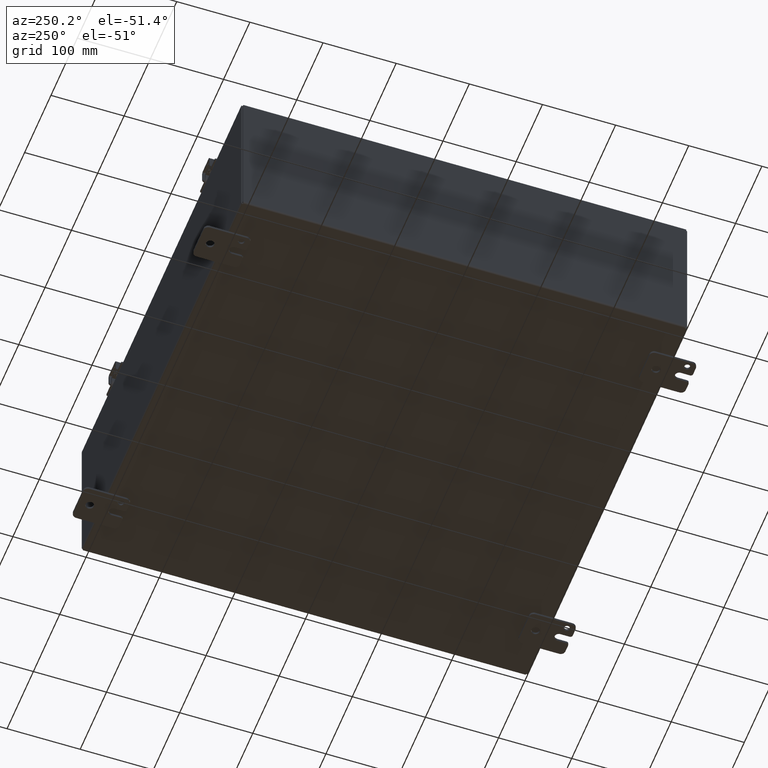
[diagram: clean part render]
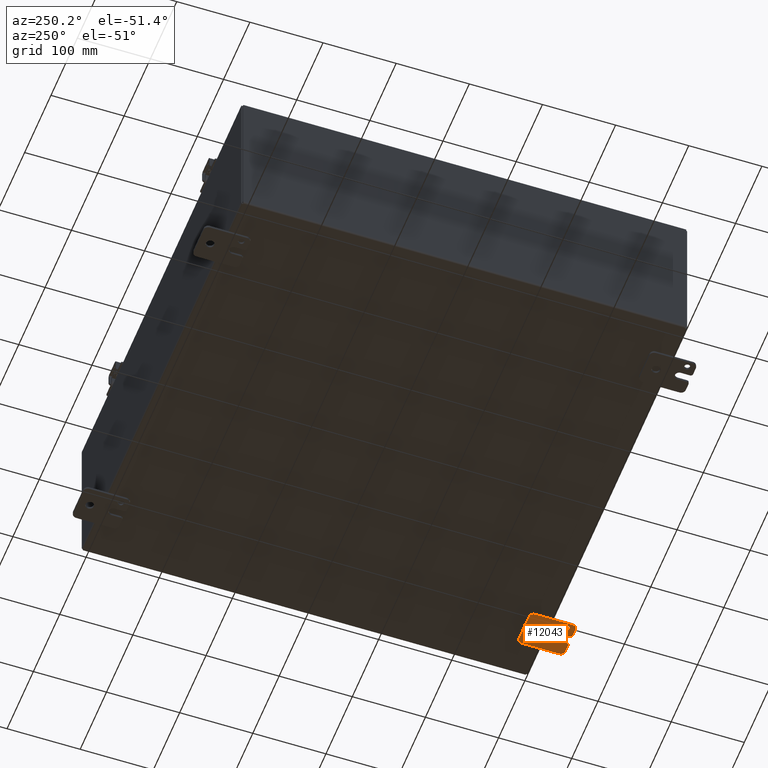
[diagram: same view with one face highlighted and labeled with its STEP entity id]
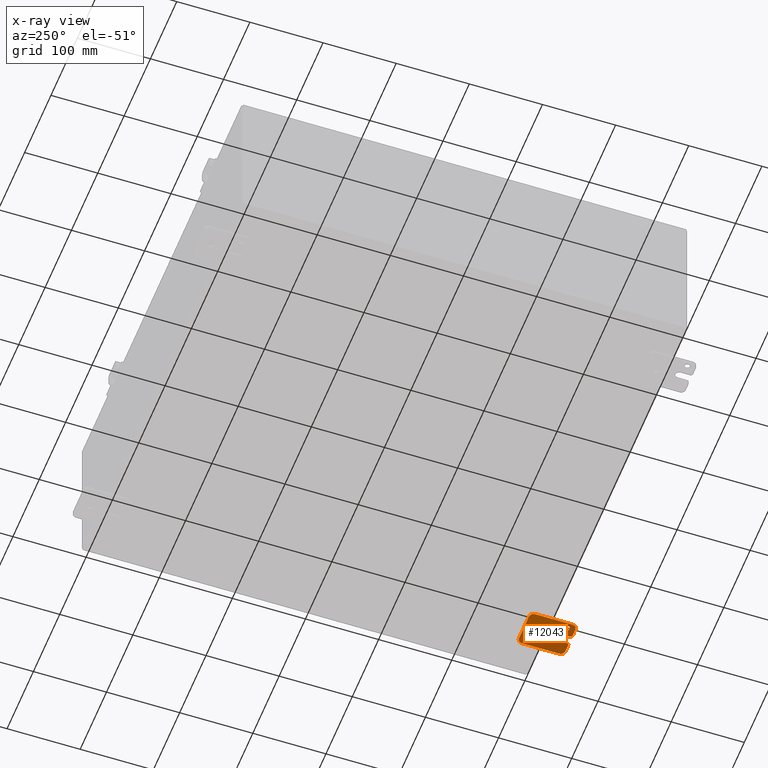
[diagram: x-ray of the same camera — body ghosted, the highlighted face saturated]
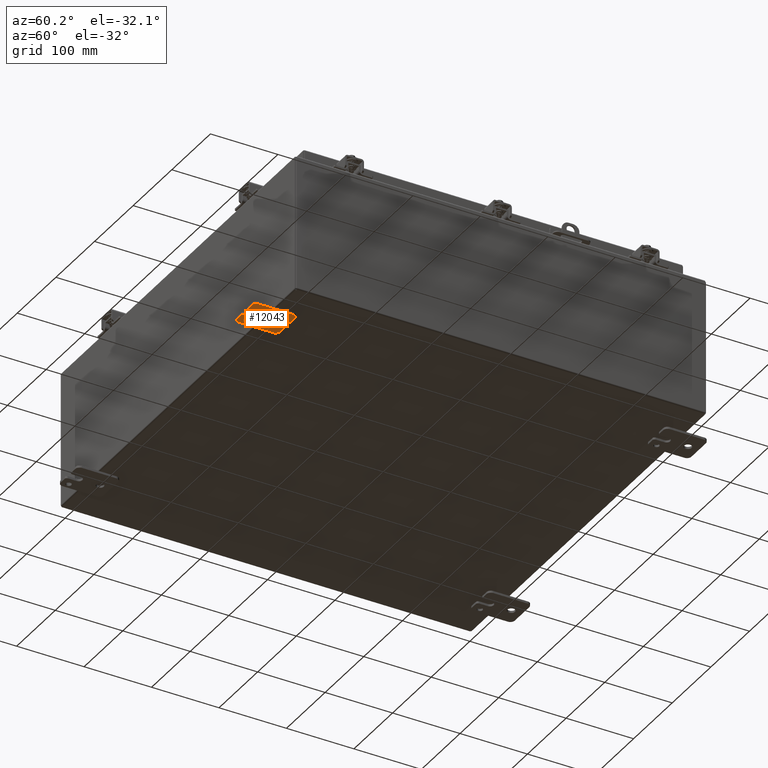
[diagram: same view with one face highlighted and labeled with its STEP entity id]
A machine part, auxiliary view. The second image highlights one B-rep face of the part: STEP entity #12043.
The next image is the same camera in x-ray: the body ghosted, the highlighted face saturated — about 0% of this face is hidden behind the body in this view.
A second angle (auxiliary view) of the same face is appended — the face is thin or edge-on in the first view.
In plain terms, the highlighted planar face has unit normal (0, 0, 1).
Its self-contained STEP definition (entity closure, byte-faithful):
#1125=PLANE('',#12765);
#1496=LINE('',#16998,#2613);
#1506=LINE('',#17034,#2623);
#1509=LINE('',#17042,#2626);
#1512=LINE('',#17050,#2629);
#1515=LINE('',#17058,#2632);
#1517=LINE('',#17064,#2634);
#1518=LINE('',#17070,#2635);
#2613=VECTOR('',#13793,0.5);
#2623=VECTOR('',#13825,0.406);
#2626=VECTOR('',#13834,0.406);
#2629=VECTOR('',#13843,2.);
#2632=VECTOR('',#13852,1.5);
#2634=VECTOR('',#13860,2.);
#2635=VECTOR('',#13867,0.5);
#3730=FACE_BOUND('',#4482,.T.);
#3731=FACE_BOUND('',#4483,.T.);
#3789=FACE_OUTER_BOUND('',#4481,.T.);
#4481=EDGE_LOOP('',(#8507,#8508,#8509,#8510,#8511,#8512,#8513,#8514,#8515,
#8516,#8517,#8518,#8519,#8520));
#4482=EDGE_LOOP('',(#8521));
#4483=EDGE_LOOP('',(#8522));
#5194=CIRCLE('',#12731,0.1565);
#5196=CIRCLE('',#12734,0.125);
#5205=CIRCLE('',#12746,0.125);
#5206=CIRCLE('',#12749,0.25);
#5207=CIRCLE('',#12752,0.25);
#5208=CIRCLE('',#12755,0.25);
#5209=CIRCLE('',#12758,0.25);
#5210=CIRCLE('',#12761,0.219);
#5211=CIRCLE('',#12764,0.219);
#5573=VERTEX_POINT('',#16980);
#5575=VERTEX_POINT('',#16985);
#5576=VERTEX_POINT('',#16986);
#5580=VERTEX_POINT('',#16996);
#5593=VERTEX_POINT('',#17026);
#5594=VERTEX_POINT('',#17028);
#5595=VERTEX_POINT('',#17032);
#5596=VERTEX_POINT('',#17036);
#5597=VERTEX_POINT('',#17038);
#5598=VERTEX_POINT('',#17044);
#5599=VERTEX_POINT('',#17048);
#5600=VERTEX_POINT('',#17052);
#5601=VERTEX_POINT('',#17056);
#5602=VERTEX_POINT('',#17060);
#5603=VERTEX_POINT('',#17066);
#5604=VERTEX_POINT('',#17069);
#6695=EDGE_CURVE('',#5573,#5573,#5194,.T.);
#6697=EDGE_CURVE('',#5575,#5576,#5196,.T.);
#6703=EDGE_CURVE('',#5575,#5580,#1496,.T.);
#6718=EDGE_CURVE('',#5593,#5594,#5205,.T.);
#6721=EDGE_CURVE('',#5595,#5593,#1506,.T.);
#6723=EDGE_CURVE('',#5596,#5597,#5206,.T.);
#6725=EDGE_CURVE('',#5576,#5596,#1509,.T.);
#6727=EDGE_CURVE('',#5598,#5595,#5207,.T.);
#6729=EDGE_CURVE('',#5599,#5598,#1512,.T.);
#6731=EDGE_CURVE('',#5600,#5599,#5208,.T.);
#6733=EDGE_CURVE('',#5601,#5600,#1515,.T.);
#6735=EDGE_CURVE('',#5602,#5601,#5209,.T.);
#6736=EDGE_CURVE('',#5597,#5602,#1517,.T.);
#6737=EDGE_CURVE('',#5603,#5603,#5210,.T.);
#6738=EDGE_CURVE('',#5604,#5594,#1518,.T.);
#6740=EDGE_CURVE('',#5580,#5604,#5211,.T.);
#8507=ORIENTED_EDGE('',*,*,#6697,.F.);
#8508=ORIENTED_EDGE('',*,*,#6703,.T.);
#8509=ORIENTED_EDGE('',*,*,#6740,.T.);
#8510=ORIENTED_EDGE('',*,*,#6738,.T.);
#8511=ORIENTED_EDGE('',*,*,#6718,.F.);
#8512=ORIENTED_EDGE('',*,*,#6721,.F.);
#8513=ORIENTED_EDGE('',*,*,#6727,.F.);
#8514=ORIENTED_EDGE('',*,*,#6729,.F.);
#8515=ORIENTED_EDGE('',*,*,#6731,.F.);
#8516=ORIENTED_EDGE('',*,*,#6733,.F.);
#8517=ORIENTED_EDGE('',*,*,#6735,.F.);
#8518=ORIENTED_EDGE('',*,*,#6736,.F.);
#8519=ORIENTED_EDGE('',*,*,#6723,.F.);
#8520=ORIENTED_EDGE('',*,*,#6725,.F.);
#8521=ORIENTED_EDGE('',*,*,#6695,.T.);
#8522=ORIENTED_EDGE('',*,*,#6737,.T.);
#12043=ADVANCED_FACE('',(#3789,#3730,#3731),#1125,.F.);
#12731=AXIS2_PLACEMENT_3D('',#16981,#13777,#13778);
#12734=AXIS2_PLACEMENT_3D('',#16987,#13783,#13784);
#12746=AXIS2_PLACEMENT_3D('',#17029,#13819,#13820);
#12749=AXIS2_PLACEMENT_3D('',#17039,#13829,#13830);
#12752=AXIS2_PLACEMENT_3D('',#17046,#13838,#13839);
#12755=AXIS2_PLACEMENT_3D('',#17054,#13847,#13848);
#12758=AXIS2_PLACEMENT_3D('',#17062,#13856,#13857);
#12761=AXIS2_PLACEMENT_3D('',#17067,#13863,#13864);
#12764=AXIS2_PLACEMENT_3D('',#17073,#13871,#13872);
#12765=AXIS2_PLACEMENT_3D('',#17074,#13873,#13874);
#13777=DIRECTION('center_axis',(0.,0.,1.));
#13778=DIRECTION('ref_axis',(-1.,0.,0.));
#13783=DIRECTION('center_axis',(0.,0.,1.));
#13784=DIRECTION('ref_axis',(-0.707106781186547,-0.707106781186548,0.));
#13793=DIRECTION('',(0.,1.,0.));
#13819=DIRECTION('center_axis',(0.,0.,1.));
#13820=DIRECTION('ref_axis',(0.707106781186548,-0.707106781186548,0.));
#13825=DIRECTION('',(1.,0.,0.));
#13829=DIRECTION('center_axis',(0.,0.,1.));
#13830=DIRECTION('ref_axis',(0.707106781186548,-0.707106781186548,0.));
#13834=DIRECTION('',(1.,0.,0.));
#13838=DIRECTION('center_axis',(0.,0.,1.));
#13839=DIRECTION('ref_axis',(-0.707106781186547,-0.707106781186548,0.));
#13843=DIRECTION('',(3.06161699786838E-16,-1.,0.));
#13847=DIRECTION('center_axis',(0.,0.,1.));
#13848=DIRECTION('ref_axis',(-0.707106781186548,0.707106781186547,0.));
#13852=DIRECTION('',(-1.,0.,0.));
#13856=DIRECTION('center_axis',(0.,0.,1.));
#13857=DIRECTION('ref_axis',(0.707106781186548,0.707106781186548,0.));
#13860=DIRECTION('',(0.,1.,0.));
#13863=DIRECTION('center_axis',(0.,0.,1.));
#13864=DIRECTION('ref_axis',(-1.,0.,0.));
#13867=DIRECTION('',(0.,-1.,0.));
#13871=DIRECTION('center_axis',(0.,0.,1.));
#13872=DIRECTION('ref_axis',(1.,0.,0.));
#13873=DIRECTION('center_axis',(0.,0.,1.));
#13874=DIRECTION('ref_axis',(1.,0.,0.));
#16980=CARTESIAN_POINT('',(0.4695,0.438,0.));
#16981=CARTESIAN_POINT('Origin',(0.313,0.438,0.));
#16985=CARTESIAN_POINT('',(1.219,0.125,0.));
#16986=CARTESIAN_POINT('',(1.344,0.,0.));
#16987=CARTESIAN_POINT('Origin',(1.344,0.125,0.));
#16996=CARTESIAN_POINT('',(1.219,0.625,0.));
#16998=CARTESIAN_POINT('',(1.219,0.625,0.));
#17026=CARTESIAN_POINT('',(0.656,0.,0.));
#17028=CARTESIAN_POINT('',(0.780999999999999,0.125,0.));
#17029=CARTESIAN_POINT('Origin',(0.656,0.125,0.));
#17032=CARTESIAN_POINT('',(0.25,0.,0.));
#17034=CARTESIAN_POINT('',(0.,0.,0.));
#17036=CARTESIAN_POINT('',(1.75,0.,0.));
#17038=CARTESIAN_POINT('',(2.,0.25,0.));
#17039=CARTESIAN_POINT('Origin',(1.75,0.25,0.));
#17042=CARTESIAN_POINT('',(0.,0.,0.));
#17044=CARTESIAN_POINT('',(-7.65404249467095E-17,0.25,0.));
#17046=CARTESIAN_POINT('Origin',(0.25,0.25,0.));
#17048=CARTESIAN_POINT('',(-6.88863824520386E-16,2.25,0.));
#17050=CARTESIAN_POINT('',(-7.65404249467096E-16,2.5,0.));
#17052=CARTESIAN_POINT('',(0.249999999999999,2.5,0.));
#17054=CARTESIAN_POINT('Origin',(0.249999999999999,2.25,0.));
#17056=CARTESIAN_POINT('',(1.75,2.5,0.));
#17058=CARTESIAN_POINT('',(2.,2.5,0.));
#17060=CARTESIAN_POINT('',(2.,2.25,0.));
#17062=CARTESIAN_POINT('Origin',(1.75,2.25,0.));
#17064=CARTESIAN_POINT('',(2.,0.,0.));
#17066=CARTESIAN_POINT('',(1.219,1.875,0.));
#17067=CARTESIAN_POINT('Origin',(1.,1.875,0.));
#17069=CARTESIAN_POINT('',(0.781,0.625,0.));
#17070=CARTESIAN_POINT('',(0.780999999999999,0.9375,0.));
#17073=CARTESIAN_POINT('Origin',(1.,0.625,0.));
#17074=CARTESIAN_POINT('Origin',(1.,1.25,0.));